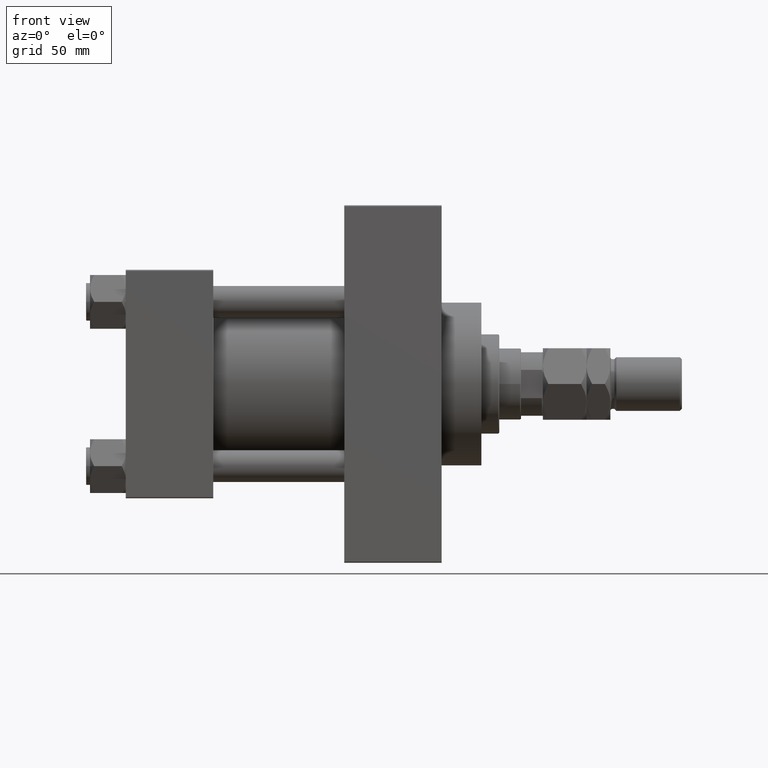
[diagram: clean part render]
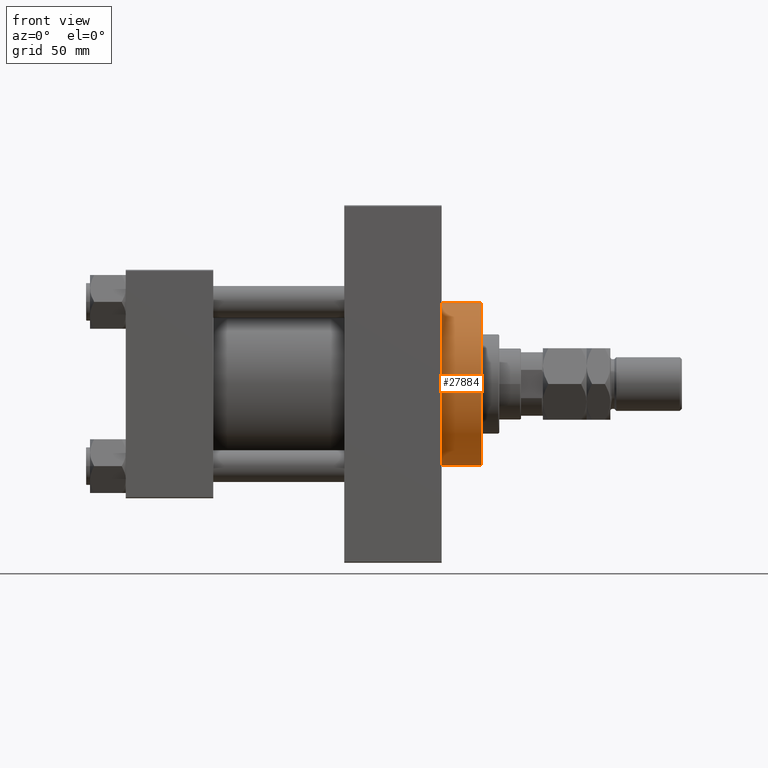
[diagram: same view with one face highlighted and labeled with its STEP entity id]
A machine part, front view. The second image highlights one B-rep face of the part: STEP entity #27884.
In plain terms, the highlighted cylindrical surface (partial cylindrical patch) has radius 41 mm, axis along (-1, -0, -0).
Its self-contained STEP definition (entity closure, byte-faithful):
#1485 = CARTESIAN_POINT ( 'NONE',  ( 179.0000000000000000, 5.021051876504148963E-15, -41.00000000000000000 ) ) ;
#1859 = DIRECTION ( 'NONE',  ( 0.000000000000000000, 0.000000000000000000, -1.000000000000000000 ) ) ;
#3992 = VECTOR ( 'NONE', #26686, 1000.000000000000000 ) ;
#4117 = ORIENTED_EDGE ( 'NONE', *, *, #28237, .T. ) ;
#4737 = CARTESIAN_POINT ( 'NONE',  ( 159.0000000000000000, 5.021051876504148963E-15, -41.00000000000000000 ) ) ;
#5852 = CARTESIAN_POINT ( 'NONE',  ( 179.0000000000000000, 0.000000000000000000, 41.00000000000000000 ) ) ;
#7418 = EDGE_CURVE ( 'NONE', #47371, #12875, #37675, .T. ) ;
#8421 = CYLINDRICAL_SURFACE ( 'NONE', #29345, 41.00000000000000000 ) ;
#8921 = FACE_OUTER_BOUND ( 'NONE', #36988, .T. ) ;
#12875 = VERTEX_POINT ( 'NONE', #26248 ) ;
#12902 = DIRECTION ( 'NONE',  ( -1.000000000000000000, -0.000000000000000000, -0.000000000000000000 ) ) ;
#13581 = DIRECTION ( 'NONE',  ( 1.000000000000000000, 0.000000000000000000, 0.000000000000000000 ) ) ;
#15719 = CIRCLE ( 'NONE', #24474, 41.00000000000000000 ) ;
#16044 = VERTEX_POINT ( 'NONE', #29367 ) ;
#20607 = CIRCLE ( 'NONE', #31745, 41.00000000000000000 ) ;
#23461 = ORIENTED_EDGE ( 'NONE', *, *, #25370, .F. ) ;
#24474 = AXIS2_PLACEMENT_3D ( 'NONE', #48047, #40831, #33355 ) ;
#24790 = ORIENTED_EDGE ( 'NONE', *, *, #41411, .F. ) ;
#25157 = DIRECTION ( 'NONE',  ( -1.000000000000000000, -0.000000000000000000, -0.000000000000000000 ) ) ;
#25370 = EDGE_CURVE ( 'NONE', #47371, #16044, #15719, .T. ) ;
#26248 = CARTESIAN_POINT ( 'NONE',  ( 159.0000000000000000, 0.000000000000000000, 41.00000000000000000 ) ) ;
#26686 = DIRECTION ( 'NONE',  ( -1.000000000000000000, -0.000000000000000000, -0.000000000000000000 ) ) ;
#27884 = ADVANCED_FACE ( 'NONE', ( #8921 ), #8421, .T. ) ;
#28112 = DIRECTION ( 'NONE',  ( 0.000000000000000000, 0.000000000000000000, 1.000000000000000000 ) ) ;
#28237 = EDGE_CURVE ( 'NONE', #12875, #29083, #20607, .T. ) ;
#29083 = VERTEX_POINT ( 'NONE', #4737 ) ;
#29345 = AXIS2_PLACEMENT_3D ( 'NONE', #47055, #12902, #28112 ) ;
#29367 = CARTESIAN_POINT ( 'NONE',  ( 179.0000000000000000, 5.021051876504148963E-15, -41.00000000000000000 ) ) ;
#29811 = VECTOR ( 'NONE', #25157, 1000.000000000000000 ) ;
#31745 = AXIS2_PLACEMENT_3D ( 'NONE', #43998, #13581, #1859 ) ;
#33355 = DIRECTION ( 'NONE',  ( 0.000000000000000000, 0.000000000000000000, -1.000000000000000000 ) ) ;
#36988 = EDGE_LOOP ( 'NONE', ( #24790, #23461, #39396, #4117 ) ) ;
#37675 = LINE ( 'NONE', #45870, #3992 ) ;
#39396 = ORIENTED_EDGE ( 'NONE', *, *, #7418, .T. ) ;
#40831 = DIRECTION ( 'NONE',  ( 1.000000000000000000, 0.000000000000000000, 0.000000000000000000 ) ) ;
#41411 = EDGE_CURVE ( 'NONE', #16044, #29083, #43619, .T. ) ;
#43619 = LINE ( 'NONE', #1485, #29811 ) ;
#43998 = CARTESIAN_POINT ( 'NONE',  ( 159.0000000000000000, 0.000000000000000000, 0.000000000000000000 ) ) ;
#45870 = CARTESIAN_POINT ( 'NONE',  ( 179.0000000000000000, 0.000000000000000000, 41.00000000000000000 ) ) ;
#47055 = CARTESIAN_POINT ( 'NONE',  ( 179.0000000000000000, 0.000000000000000000, 0.000000000000000000 ) ) ;
#47371 = VERTEX_POINT ( 'NONE', #5852 ) ;
#48047 = CARTESIAN_POINT ( 'NONE',  ( 179.0000000000000000, 0.000000000000000000, 0.000000000000000000 ) ) ;